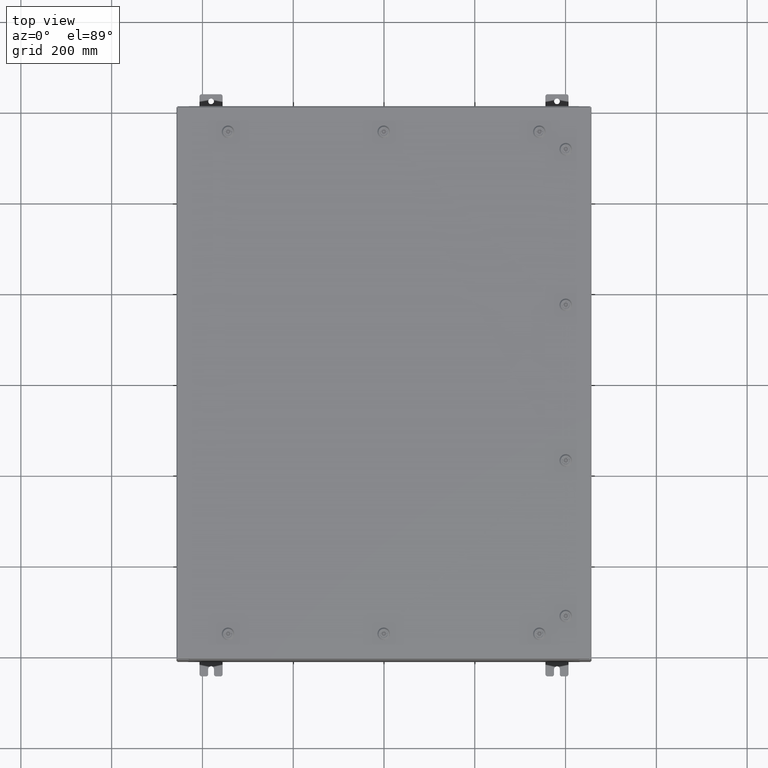
[diagram: clean part render]
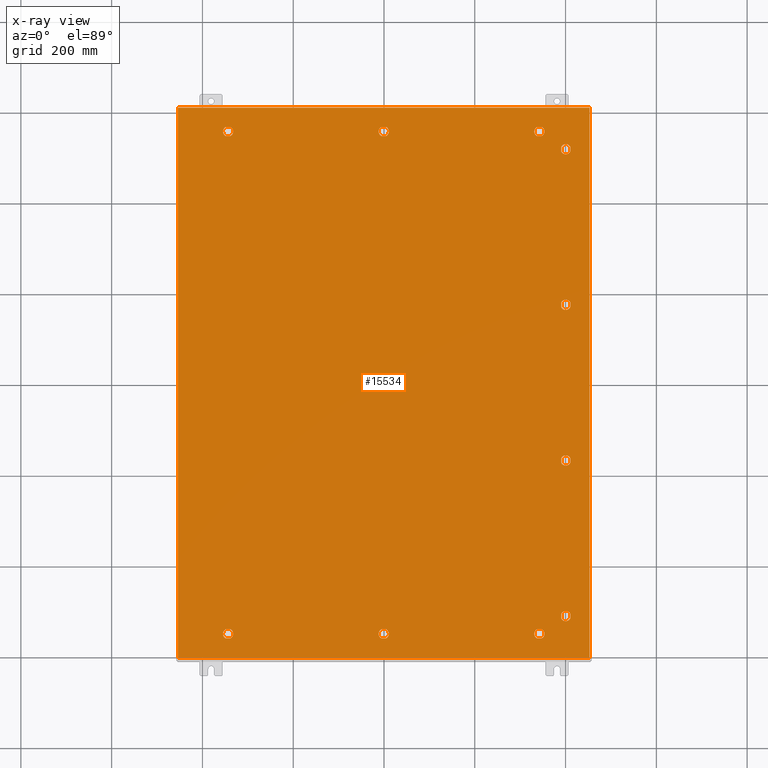
[diagram: x-ray — body ghosted, one internal face saturated and labeled with its STEP entity id]
A machine part, top view, then the same camera in x-ray: the body is ghosted and one INTERNAL B-rep face — a face not visible from any outside direction — is saturated and labeled: STEP entity #15534.
In plain terms, the highlighted planar face has unit normal (0, 0, -1).
Its self-contained STEP definition (entity closure, byte-faithful):
#37 = CARTESIAN_POINT ( 'NONE',  ( 16.18280000000001800, -20.05054762473213300, -0.07470000000000003000 ) ) ;
#75 = VERTEX_POINT ( 'NONE', #17983 ) ;
#163 = CIRCLE ( 'NONE', #15433, 0.4424999999999961700 ) ;
#494 = AXIS2_PLACEMENT_3D ( 'NONE', #17454, #54567, #22772 ) ;
#769 = ORIENTED_EDGE ( 'NONE', *, *, #22040, .T. ) ;
#832 = CARTESIAN_POINT ( 'NONE',  ( -13.49999999999998600, -21.78780000000000800, -0.07470000000000003000 ) ) ;
#854 = CIRCLE ( 'NONE', #10004, 0.4424999999999961700 ) ;
#1095 = DIRECTION ( 'NONE',  ( -5.478697338139280800E-015, 1.000000000000000000, 0.0000000000000000000 ) ) ;
#1401 = FACE_BOUND ( 'NONE', #10807, .T. ) ;
#1618 = CIRCLE ( 'NONE', #11493, 0.4424999999999983400 ) ;
#1878 = CARTESIAN_POINT ( 'NONE',  ( 16.18280000000000400, -6.949452375267900300, -0.07470000000000003000 ) ) ;
#2004 = DIRECTION ( 'NONE',  ( -0.0000000000000000000, -0.0000000000000000000, 1.000000000000000000 ) ) ;
#2247 = CARTESIAN_POINT ( 'NONE',  ( 13.69945237526786700, 22.18280000000000400, -0.07470000000000003000 ) ) ;
#3018 = ORIENTED_EDGE ( 'NONE', *, *, #37759, .T. ) ;
#3319 = ORIENTED_EDGE ( 'NONE', *, *, #36808, .T. ) ;
#3341 = CARTESIAN_POINT ( 'NONE',  ( -0.1994523752678689600, 21.39280000000001200, -0.07470000000000003000 ) ) ;
#3543 = AXIS2_PLACEMENT_3D ( 'NONE', #4644, #41782, #9991 ) ;
#3545 = VERTEX_POINT ( 'NONE', #36854 ) ;
#3580 = VERTEX_POINT ( 'NONE', #42418 ) ;
#3613 = CARTESIAN_POINT ( 'NONE',  ( -13.05749999999998900, 21.78780000000000400, -0.07470000000000003000 ) ) ;
#3982 = CARTESIAN_POINT ( 'NONE',  ( 17.84980000000000200, 23.84980000000000900, -0.07469999999999804600 ) ) ;
#4029 = CARTESIAN_POINT ( 'NONE',  ( 13.30054762473210200, 21.39280000000001200, -0.07470000000000003000 ) ) ;
#4033 = CARTESIAN_POINT ( 'NONE',  ( 0.1994523752679067700, 22.18280000000000000, -0.07470000000000003000 ) ) ;
#4089 = VERTEX_POINT ( 'NONE', #3613 ) ;
#4132 = VECTOR ( 'NONE', #11079, 39.37007874015748100 ) ;
#4202 = VERTEX_POINT ( 'NONE', #62790 ) ;
#4644 = CARTESIAN_POINT ( 'NONE',  ( 13.49999999999998600, -21.78780000000000400, -0.07470000000000003000 ) ) ;
#5069 = CARTESIAN_POINT ( 'NONE',  ( 1.529834876451987200E-014, -21.78780000000000400, -0.07470000000000003000 ) ) ;
#5114 = CIRCLE ( 'NONE', #26688, 0.4424999999999983400 ) ;
#5325 = ORIENTED_EDGE ( 'NONE', *, *, #9247, .T. ) ;
#5942 = CIRCLE ( 'NONE', #21193, 0.4424999999999961700 ) ;
#5946 = CARTESIAN_POINT ( 'NONE',  ( -13.30054762473210400, -21.39280000000001500, -0.07470000000000003000 ) ) ;
#6075 = LINE ( 'NONE', #35560, #55985 ) ;
#6140 = DIRECTION ( 'NONE',  ( -1.000000000000000000, 0.0000000000000000000, 0.0000000000000000000 ) ) ;
#6235 = CARTESIAN_POINT ( 'NONE',  ( 0.1994523752679067700, -22.18280000000000000, -0.07470000000000003000 ) ) ;
#6261 = LINE ( 'NONE', #33136, #32872 ) ;
#6452 = CARTESIAN_POINT ( 'NONE',  ( 13.30054762473209500, -22.18280000000000000, -0.07470000000000003000 ) ) ;
#6458 = ORIENTED_EDGE ( 'NONE', *, *, #11545, .F. ) ;
#6733 = CARTESIAN_POINT ( 'NONE',  ( 0.4425000000000125500, 21.78780000000000400, -0.07470000000000003000 ) ) ;
#6764 = CARTESIAN_POINT ( 'NONE',  ( 0.0000000000000000000, 0.0000000000000000000, -0.07470000000000000300 ) ) ;
#6873 = EDGE_CURVE ( 'NONE', #51716, #36488, #6075, .T. ) ;
#7069 = EDGE_CURVE ( 'NONE', #60221, #4089, #63396, .T. ) ;
#7410 = CARTESIAN_POINT ( 'NONE',  ( 17.84980000000000200, -23.84979999999999800, -0.07470000000000000300 ) ) ;
#8037 = EDGE_CURVE ( 'NONE', #46831, #61952, #47565, .T. ) ;
#8076 = VECTOR ( 'NONE', #46489, 39.37007874015748100 ) ;
#8540 = ORIENTED_EDGE ( 'NONE', *, *, #68717, .T. ) ;
#8555 = AXIS2_PLACEMENT_3D ( 'NONE', #51976, #20202, #57352 ) ;
#8990 = AXIS2_PLACEMENT_3D ( 'NONE', #12853, #50003, #18205 ) ;
#9032 = EDGE_CURVE ( 'NONE', #67609, #3545, #5114, .T. ) ;
#9097 = DIRECTION ( 'NONE',  ( 1.095739467627835000E-014, -1.000000000000000000, 0.0000000000000000000 ) ) ;
#9247 = EDGE_CURVE ( 'NONE', #36488, #67938, #54968, .T. ) ;
#9619 = VERTEX_POINT ( 'NONE', #57562 ) ;
#9762 = VERTEX_POINT ( 'NONE', #63551 ) ;
#9991 = DIRECTION ( 'NONE',  ( -1.000000000000000000, 0.0000000000000000000, 0.0000000000000000000 ) ) ;
#10004 = AXIS2_PLACEMENT_3D ( 'NONE', #61804, #29992, #67150 ) ;
#10065 = ORIENTED_EDGE ( 'NONE', *, *, #37503, .F. ) ;
#10264 = CIRCLE ( 'NONE', #8990, 0.4424999999999972800 ) ;
#10380 = LINE ( 'NONE', #64693, #65172 ) ;
#10419 = DIRECTION ( 'NONE',  ( -1.000000000000000000, 9.877868451667453200E-015, 0.0000000000000000000 ) ) ;
#10807 = EDGE_LOOP ( 'NONE', ( #68796, #54432, #54046, #49093, #21652 ) ) ;
#11079 = DIRECTION ( 'NONE',  ( -1.000000000000000000, 0.0000000000000000000, 0.0000000000000000000 ) ) ;
#11403 = LINE ( 'NONE', #25423, #27174 ) ;
#11493 = AXIS2_PLACEMENT_3D ( 'NONE', #33823, #2004, #39184 ) ;
#11545 = EDGE_CURVE ( 'NONE', #59935, #35590, #24063, .T. ) ;
#11612 = ORIENTED_EDGE ( 'NONE', *, *, #48999, .T. ) ;
#11778 = ORIENTED_EDGE ( 'NONE', *, *, #16570, .T. ) ;
#11961 = AXIS2_PLACEMENT_3D ( 'NONE', #29204, #66347, #34543 ) ;
#12249 = LINE ( 'NONE', #62866, #40520 ) ;
#12257 = VERTEX_POINT ( 'NONE', #43916 ) ;
#12371 = CARTESIAN_POINT ( 'NONE',  ( 15.39280000000001500, -6.949452375267905600, -0.07470000000000000300 ) ) ;
#12399 = ORIENTED_EDGE ( 'NONE', *, *, #57280, .T. ) ;
#12421 = ORIENTED_EDGE ( 'NONE', *, *, #41600, .T. ) ;
#12505 = AXIS2_PLACEMENT_3D ( 'NONE', #16825, #53920, #22144 ) ;
#12562 = CARTESIAN_POINT ( 'NONE',  ( 16.18280000000000700, 6.949452375267900300, -0.07470000000000000300 ) ) ;
#12646 = DIRECTION ( 'NONE',  ( -1.095739467627844000E-014, -1.000000000000000000, 0.0000000000000000000 ) ) ;
#12853 = CARTESIAN_POINT ( 'NONE',  ( 1.529834876451987200E-014, 21.78780000000000400, -0.07470000000000003000 ) ) ;
#12874 = CARTESIAN_POINT ( 'NONE',  ( -17.84979999999999500, 23.84980000000000900, -0.07470000000000129300 ) ) ;
#13127 = CIRCLE ( 'NONE', #62368, 0.4424999999999983400 ) ;
#13267 = LINE ( 'NONE', #49598, #53921 ) ;
#13903 = DIRECTION ( 'NONE',  ( -0.0000000000000000000, -0.0000000000000000000, 1.000000000000000000 ) ) ;
#13924 = FACE_BOUND ( 'NONE', #14090, .T. ) ;
#13950 = VECTOR ( 'NONE', #62910, 39.37007874015748100 ) ;
#14064 = CARTESIAN_POINT ( 'NONE',  ( 15.39280000000001400, 6.550547624732131700, -0.07470000000000003000 ) ) ;
#14090 = EDGE_LOOP ( 'NONE', ( #34925, #46557, #54958, #11612, #57676 ) ) ;
#14119 = VERTEX_POINT ( 'NONE', #57889 ) ;
#14762 = AXIS2_PLACEMENT_3D ( 'NONE', #27377, #64515, #32723 ) ;
#14998 = ORIENTED_EDGE ( 'NONE', *, *, #24389, .T. ) ;
#15092 = CARTESIAN_POINT ( 'NONE',  ( 13.49999999999998600, 21.78780000000000400, -0.07470000000000003000 ) ) ;
#15168 = DIRECTION ( 'NONE',  ( -0.0000000000000000000, -0.0000000000000000000, 1.000000000000000000 ) ) ;
#15183 = EDGE_CURVE ( 'NONE', #67938, #12257, #11403, .T. ) ;
#15187 = ORIENTED_EDGE ( 'NONE', *, *, #42285, .T. ) ;
#15219 = AXIS2_PLACEMENT_3D ( 'NONE', #832, #37974, #6140 ) ;
#15433 = AXIS2_PLACEMENT_3D ( 'NONE', #62601, #30806, #67953 ) ;
#15534 = ADVANCED_FACE ( 'NONE', ( #32990, #57945, #17232, #15594, #1401, #29660, #56300, #42130, #27970, #13924, #68720 ), #38600, .T. ) ;
#15594 = FACE_BOUND ( 'NONE', #20407, .T. ) ;
#15895 = EDGE_CURVE ( 'NONE', #48794, #32324, #18036, .T. ) ;
#15935 = VERTEX_POINT ( 'NONE', #57320 ) ;
#16156 = CARTESIAN_POINT ( 'NONE',  ( -13.05749999999999000, -21.78780000000000800, -0.07470000000000003000 ) ) ;
#16454 = VERTEX_POINT ( 'NONE', #3341 ) ;
#16517 = DIRECTION ( 'NONE',  ( -1.000000000000000000, 0.0000000000000000000, 0.0000000000000000000 ) ) ;
#16570 = EDGE_CURVE ( 'NONE', #66641, #51792, #52864, .T. ) ;
#16825 = CARTESIAN_POINT ( 'NONE',  ( -13.49999999999998600, 21.78780000000000400, -0.07470000000000003000 ) ) ;
#16955 = ORIENTED_EDGE ( 'NONE', *, *, #47272, .T. ) ;
#17232 = FACE_BOUND ( 'NONE', #64681, .T. ) ;
#17370 = EDGE_CURVE ( 'NONE', #57395, #32882, #36203, .T. ) ;
#17454 = CARTESIAN_POINT ( 'NONE',  ( 1.529834876451987200E-014, -21.78780000000000400, -0.07470000000000003000 ) ) ;
#17538 = AXIS2_PLACEMENT_3D ( 'NONE', #22326, #59452, #27641 ) ;
#17782 = CIRCLE ( 'NONE', #3543, 0.4424999999999983400 ) ;
#17817 = DIRECTION ( 'NONE',  ( -5.478697338139235000E-015, 1.000000000000000000, 0.0000000000000000000 ) ) ;
#17983 = CARTESIAN_POINT ( 'NONE',  ( 17.84980000000000200, 23.84980000000000200, -0.07470000000000000300 ) ) ;
#18036 = LINE ( 'NONE', #46637, #60357 ) ;
#18205 = DIRECTION ( 'NONE',  ( -1.000000000000000000, 0.0000000000000000000, 0.0000000000000000000 ) ) ;
#18332 = ORIENTED_EDGE ( 'NONE', *, *, #17370, .T. ) ;
#18454 = DIRECTION ( 'NONE',  ( -0.0000000000000000000, -0.0000000000000000000, 1.000000000000000000 ) ) ;
#18467 = CARTESIAN_POINT ( 'NONE',  ( 15.39280000000002200, 20.44945237526790300, -0.07470000000000003000 ) ) ;
#19174 = LINE ( 'NONE', #6452, #45726 ) ;
#19250 = AXIS2_PLACEMENT_3D ( 'NONE', #21059, #58196, #26352 ) ;
#19262 = EDGE_CURVE ( 'NONE', #4089, #62462, #56029, .T. ) ;
#19359 = VECTOR ( 'NONE', #57682, 39.37007874015748100 ) ;
#19590 = VERTEX_POINT ( 'NONE', #19801 ) ;
#19745 = CIRCLE ( 'NONE', #15219, 0.4424999999999961700 ) ;
#19746 = EDGE_CURVE ( 'NONE', #19590, #34097, #17782, .T. ) ;
#19801 = CARTESIAN_POINT ( 'NONE',  ( 13.69945237526786900, -22.18280000000000400, -0.07470000000000003000 ) ) ;
#20202 = DIRECTION ( 'NONE',  ( -0.0000000000000000000, -0.0000000000000000000, 1.000000000000000000 ) ) ;
#20300 = CARTESIAN_POINT ( 'NONE',  ( 0.1994523752678995500, 21.39280000000001200, -0.07470000000000003000 ) ) ;
#20407 = EDGE_LOOP ( 'NONE', ( #64170, #769, #14998, #64140 ) ) ;
#20408 = DIRECTION ( 'NONE',  ( -1.000000000000000000, 0.0000000000000000000, 0.0000000000000000000 ) ) ;
#20471 = ORIENTED_EDGE ( 'NONE', *, *, #8037, .T. ) ;
#20831 = VERTEX_POINT ( 'NONE', #60471 ) ;
#20858 = LINE ( 'NONE', #24790, #50760 ) ;
#20935 = LINE ( 'NONE', #38596, #33355 ) ;
#21059 = CARTESIAN_POINT ( 'NONE',  ( 15.78780000000000800, -6.750000000000014200, -0.07470000000000003000 ) ) ;
#21193 = AXIS2_PLACEMENT_3D ( 'NONE', #27927, #65070, #33306 ) ;
#21300 = CIRCLE ( 'NONE', #17538, 0.4424999999999972800 ) ;
#21308 = CARTESIAN_POINT ( 'NONE',  ( -13.49999999999998600, -21.78780000000000800, -0.07470000000000003000 ) ) ;
#21352 = EDGE_CURVE ( 'NONE', #15935, #66641, #31568, .T. ) ;
#21621 = CIRCLE ( 'NONE', #494, 0.4424999999999969000 ) ;
#21652 = ORIENTED_EDGE ( 'NONE', *, *, #52927, .T. ) ;
#21734 = CARTESIAN_POINT ( 'NONE',  ( 1.529834876451987200E-014, -21.78780000000000400, -0.07470000000000003000 ) ) ;
#21815 = DIRECTION ( 'NONE',  ( -0.0000000000000000000, -0.0000000000000000000, 1.000000000000000000 ) ) ;
#21819 = EDGE_CURVE ( 'NONE', #66131, #42914, #48164, .T. ) ;
#22040 = EDGE_CURVE ( 'NONE', #3545, #49673, #13267, .T. ) ;
#22144 = DIRECTION ( 'NONE',  ( -1.000000000000000000, 0.0000000000000000000, 0.0000000000000000000 ) ) ;
#22326 = CARTESIAN_POINT ( 'NONE',  ( 1.529834876451987200E-014, 21.78780000000000400, -0.07470000000000003000 ) ) ;
#22353 = EDGE_CURVE ( 'NONE', #12257, #51716, #59723, .T. ) ;
#22580 = CARTESIAN_POINT ( 'NONE',  ( 13.49999999999998600, -21.78780000000000400, -0.07470000000000003000 ) ) ;
#22712 = AXIS2_PLACEMENT_3D ( 'NONE', #56259, #24423, #61564 ) ;
#22772 = DIRECTION ( 'NONE',  ( -1.000000000000000000, 0.0000000000000000000, 0.0000000000000000000 ) ) ;
#22853 = CIRCLE ( 'NONE', #22712, 0.4424999999999961700 ) ;
#22884 = ORIENTED_EDGE ( 'NONE', *, *, #54163, .T. ) ;
#23045 = DIRECTION ( 'NONE',  ( 1.000000000000000000, 0.0000000000000000000, 0.0000000000000000000 ) ) ;
#23639 = ORIENTED_EDGE ( 'NONE', *, *, #60553, .T. ) ;
#23682 = ORIENTED_EDGE ( 'NONE', *, *, #15895, .T. ) ;
#24054 = CARTESIAN_POINT ( 'NONE',  ( 16.18280000000001100, 20.44945237526789600, -0.07470000000000000300 ) ) ;
#24063 = LINE ( 'NONE', #12874, #38162 ) ;
#24232 = VECTOR ( 'NONE', #48697, 39.37007874015748100 ) ;
#24389 = EDGE_CURVE ( 'NONE', #49673, #45812, #13127, .T. ) ;
#24423 = DIRECTION ( 'NONE',  ( -0.0000000000000000000, -0.0000000000000000000, 1.000000000000000000 ) ) ;
#24492 = EDGE_CURVE ( 'NONE', #45812, #67609, #12249, .T. ) ;
#24790 = CARTESIAN_POINT ( 'NONE',  ( 15.39280000000002800, -20.44945237526790300, -0.07470000000000003000 ) ) ;
#25423 = CARTESIAN_POINT ( 'NONE',  ( 16.18280000000000400, -6.949452375267900300, -0.07470000000000003000 ) ) ;
#25563 = AXIS2_PLACEMENT_3D ( 'NONE', #46938, #15168, #52265 ) ;
#25569 = ORIENTED_EDGE ( 'NONE', *, *, #65531, .T. ) ;
#25731 = VERTEX_POINT ( 'NONE', #7410 ) ;
#26314 = CARTESIAN_POINT ( 'NONE',  ( 15.78780000000001800, -20.25000000000001400, -0.07470000000000003000 ) ) ;
#26352 = DIRECTION ( 'NONE',  ( -1.000000000000000000, 0.0000000000000000000, 0.0000000000000000000 ) ) ;
#26617 = DIRECTION ( 'NONE',  ( -1.000000000000000000, 0.0000000000000000000, 0.0000000000000000000 ) ) ;
#26652 = CARTESIAN_POINT ( 'NONE',  ( -0.1994523752678657700, -22.18280000000000400, -0.07470000000000003000 ) ) ;
#26688 = AXIS2_PLACEMENT_3D ( 'NONE', #53595, #21815, #58942 ) ;
#26698 = AXIS2_PLACEMENT_3D ( 'NONE', #50244, #18454, #55601 ) ;
#27037 = DIRECTION ( 'NONE',  ( -1.000000000000000000, 0.0000000000000000000, 0.0000000000000000000 ) ) ;
#27174 = VECTOR ( 'NONE', #62554, 39.37007874015748100 ) ;
#27377 = CARTESIAN_POINT ( 'NONE',  ( 15.78780000000000800, -6.750000000000014200, -0.07470000000000003000 ) ) ;
#27588 = EDGE_LOOP ( 'NONE', ( #53614, #12421, #3319, #20471 ) ) ;
#27641 = DIRECTION ( 'NONE',  ( -1.000000000000000000, 9.877868451667453200E-015, 0.0000000000000000000 ) ) ;
#27879 = DIRECTION ( 'NONE',  ( -1.000000000000000000, -9.877868451667478400E-015, 0.0000000000000000000 ) ) ;
#27927 = CARTESIAN_POINT ( 'NONE',  ( 15.78780000000001500, 20.25000000000001400, -0.07470000000000003000 ) ) ;
#27970 = FACE_BOUND ( 'NONE', #49931, .T. ) ;
#28115 = DIRECTION ( 'NONE',  ( 0.0000000000000000000, 0.0000000000000000000, -1.000000000000000000 ) ) ;
#28839 = CARTESIAN_POINT ( 'NONE',  ( 13.30054762473210200, 21.39280000000001200, -0.07470000000000003000 ) ) ;
#29126 = AXIS2_PLACEMENT_3D ( 'NONE', #6764, #28115, #65260 ) ;
#29204 = CARTESIAN_POINT ( 'NONE',  ( -13.49999999999998600, 21.78780000000000400, -0.07470000000000003000 ) ) ;
#29579 = CARTESIAN_POINT ( 'NONE',  ( -13.69945237526786900, 21.39280000000001200, -0.07470000000000003000 ) ) ;
#29660 = FACE_BOUND ( 'NONE', #32738, .T. ) ;
#29689 = LINE ( 'NONE', #41565, #13950 ) ;
#29760 = LINE ( 'NONE', #44228, #42222 ) ;
#29923 = CARTESIAN_POINT ( 'NONE',  ( 15.78780000000001000, 6.750000000000014200, -0.07470000000000003000 ) ) ;
#29992 = DIRECTION ( 'NONE',  ( -0.0000000000000000000, -0.0000000000000000000, 1.000000000000000000 ) ) ;
#30690 = ORIENTED_EDGE ( 'NONE', *, *, #56643, .T. ) ;
#30767 = VECTOR ( 'NONE', #12646, 39.37007874015748100 ) ;
#30806 = DIRECTION ( 'NONE',  ( -0.0000000000000000000, -0.0000000000000000000, 1.000000000000000000 ) ) ;
#31063 = DIRECTION ( 'NONE',  ( -1.095739467627835000E-014, -1.000000000000000000, 0.0000000000000000000 ) ) ;
#31199 = CARTESIAN_POINT ( 'NONE',  ( 16.18280000000001500, -20.44945237526789600, -0.07470000000000003000 ) ) ;
#31211 = CARTESIAN_POINT ( 'NONE',  ( 16.18280000000001500, -20.44945237526789600, -0.07470000000000003000 ) ) ;
#31364 = CIRCLE ( 'NONE', #48964, 0.4424999999999961700 ) ;
#31568 = CIRCLE ( 'NONE', #26698, 0.4424999999999983400 ) ;
#31663 = DIRECTION ( 'NONE',  ( -1.000000000000000000, 0.0000000000000000000, 0.0000000000000000000 ) ) ;
#32095 = CARTESIAN_POINT ( 'NONE',  ( 15.39280000000002800, -20.44945237526790300, -0.07470000000000000300 ) ) ;
#32324 = VERTEX_POINT ( 'NONE', #56556 ) ;
#32723 = DIRECTION ( 'NONE',  ( -1.000000000000000000, 0.0000000000000000000, 0.0000000000000000000 ) ) ;
#32738 = EDGE_LOOP ( 'NONE', ( #30690, #23682, #44256, #3018, #42654 ) ) ;
#32817 = CARTESIAN_POINT ( 'NONE',  ( -13.69945237526786900, -22.18280000000000700, -0.07470000000000003000 ) ) ;
#32872 = VECTOR ( 'NONE', #38489, 39.37007874015748100 ) ;
#32882 = VERTEX_POINT ( 'NONE', #56414 ) ;
#32990 = FACE_BOUND ( 'NONE', #27588, .T. ) ;
#33136 = CARTESIAN_POINT ( 'NONE',  ( 17.84980000000000200, -23.84980000000000200, -0.07470000000000019700 ) ) ;
#33207 = EDGE_CURVE ( 'NONE', #16454, #60286, #65203, .T. ) ;
#33306 = DIRECTION ( 'NONE',  ( -1.000000000000000000, 0.0000000000000000000, 0.0000000000000000000 ) ) ;
#33355 = VECTOR ( 'NONE', #33711, 39.37007874015748100 ) ;
#33610 = ORIENTED_EDGE ( 'NONE', *, *, #66491, .T. ) ;
#33711 = DIRECTION ( 'NONE',  ( -1.000000000000000000, -1.095739467627832000E-014, 0.0000000000000000000 ) ) ;
#33823 = CARTESIAN_POINT ( 'NONE',  ( 13.49999999999998600, -21.78780000000000400, -0.07470000000000003000 ) ) ;
#34006 = CIRCLE ( 'NONE', #68458, 0.4424999999999972800 ) ;
#34097 = VERTEX_POINT ( 'NONE', #47351 ) ;
#34485 = VERTEX_POINT ( 'NONE', #2247 ) ;
#34543 = DIRECTION ( 'NONE',  ( -1.000000000000000000, 0.0000000000000000000, 0.0000000000000000000 ) ) ;
#34615 = CIRCLE ( 'NONE', #12505, 0.4424999999999961700 ) ;
#34717 = DIRECTION ( 'NONE',  ( -1.000000000000000000, 0.0000000000000000000, 0.0000000000000000000 ) ) ;
#34925 = ORIENTED_EDGE ( 'NONE', *, *, #52240, .T. ) ;
#35028 = LINE ( 'NONE', #44158, #63276 ) ;
#35249 = DIRECTION ( 'NONE',  ( -1.000000000000000000, 0.0000000000000000000, 0.0000000000000000000 ) ) ;
#35359 = VERTEX_POINT ( 'NONE', #49187 ) ;
#35560 = CARTESIAN_POINT ( 'NONE',  ( 15.39280000000001500, -6.949452375267904700, -0.07470000000000003000 ) ) ;
#35590 = VERTEX_POINT ( 'NONE', #49970 ) ;
#36128 = ORIENTED_EDGE ( 'NONE', *, *, #53827, .T. ) ;
#36203 = CIRCLE ( 'NONE', #36763, 0.4424999999999972800 ) ;
#36488 = VERTEX_POINT ( 'NONE', #12371 ) ;
#36763 = AXIS2_PLACEMENT_3D ( 'NONE', #5069, #42226, #10419 ) ;
#36808 = EDGE_CURVE ( 'NONE', #46879, #46831, #59626, .T. ) ;
#36854 = CARTESIAN_POINT ( 'NONE',  ( 16.18280000000000700, 6.550547624732131700, -0.07470000000000003000 ) ) ;
#37056 = EDGE_LOOP ( 'NONE', ( #60347, #40341, #6458, #10065 ) ) ;
#37503 = EDGE_CURVE ( 'NONE', #75, #59935, #37991, .T. ) ;
#37671 = CARTESIAN_POINT ( 'NONE',  ( 15.39280000000001200, -6.550547624732131700, -0.07470000000000003000 ) ) ;
#37759 = EDGE_CURVE ( 'NONE', #48772, #66131, #42135, .T. ) ;
#37822 = AXIS2_PLACEMENT_3D ( 'NONE', #15092, #52185, #20408 ) ;
#37842 = CARTESIAN_POINT ( 'NONE',  ( 15.39280000000002200, -20.05054762473213300, -0.07470000000000003000 ) ) ;
#37859 = VERTEX_POINT ( 'NONE', #41975 ) ;
#37974 = DIRECTION ( 'NONE',  ( -0.0000000000000000000, -0.0000000000000000000, 1.000000000000000000 ) ) ;
#37991 = LINE ( 'NONE', #3982, #8076 ) ;
#38151 = AXIS2_PLACEMENT_3D ( 'NONE', #21308, #58439, #26617 ) ;
#38162 = VECTOR ( 'NONE', #50254, 39.37007874015748100 ) ;
#38298 = LINE ( 'NONE', #53622, #64832 ) ;
#38332 = CARTESIAN_POINT ( 'NONE',  ( -13.69945237526786700, 22.18280000000000400, -0.07470000000000003000 ) ) ;
#38489 = DIRECTION ( 'NONE',  ( 0.0000000000000000000, 1.000000000000000000, 0.0000000000000000000 ) ) ;
#38596 = CARTESIAN_POINT ( 'NONE',  ( 13.30054762473209400, 22.18280000000000000, -0.07470000000000003000 ) ) ;
#38600 = PLANE ( 'NONE',  #29126 ) ;
#39116 = EDGE_CURVE ( 'NONE', #60286, #43275, #21300, .T. ) ;
#39184 = DIRECTION ( 'NONE',  ( -1.000000000000000000, 0.0000000000000000000, 0.0000000000000000000 ) ) ;
#39890 = ORIENTED_EDGE ( 'NONE', *, *, #7069, .T. ) ;
#40341 = ORIENTED_EDGE ( 'NONE', *, *, #59061, .F. ) ;
#40500 = CIRCLE ( 'NONE', #37822, 0.4424999999999961700 ) ;
#40520 = VECTOR ( 'NONE', #31063, 39.37007874015748100 ) ;
#40576 = VERTEX_POINT ( 'NONE', #55427 ) ;
#40843 = ORIENTED_EDGE ( 'NONE', *, *, #54572, .T. ) ;
#40955 = CARTESIAN_POINT ( 'NONE',  ( -13.30054762473210200, 21.39280000000001200, -0.07470000000000000300 ) ) ;
#41178 = DIRECTION ( 'NONE',  ( 1.000000000000000000, 0.0000000000000000000, 0.0000000000000000000 ) ) ;
#41565 = CARTESIAN_POINT ( 'NONE',  ( -17.84979999999999800, -23.84980000000000200, -0.07469999999999804600 ) ) ;
#41600 = EDGE_CURVE ( 'NONE', #48517, #46879, #20858, .T. ) ;
#41782 = DIRECTION ( 'NONE',  ( -0.0000000000000000000, -0.0000000000000000000, 1.000000000000000000 ) ) ;
#41975 = CARTESIAN_POINT ( 'NONE',  ( -0.1994523752678657700, 22.18280000000000400, -0.07470000000000003000 ) ) ;
#42130 = FACE_BOUND ( 'NONE', #66894, .T. ) ;
#42135 = CIRCLE ( 'NONE', #8555, 0.4424999999999961700 ) ;
#42222 = VECTOR ( 'NONE', #34717, 39.37007874015748100 ) ;
#42226 = DIRECTION ( 'NONE',  ( -0.0000000000000000000, -0.0000000000000000000, 1.000000000000000000 ) ) ;
#42285 = EDGE_CURVE ( 'NONE', #45154, #35359, #46583, .T. ) ;
#42418 = CARTESIAN_POINT ( 'NONE',  ( 13.30054762473209500, -22.18280000000000000, -0.07470000000000003000 ) ) ;
#42527 = CARTESIAN_POINT ( 'NONE',  ( 0.1994523752678995500, 21.39280000000001200, -0.07470000000000000300 ) ) ;
#42654 = ORIENTED_EDGE ( 'NONE', *, *, #21819, .T. ) ;
#42838 = ORIENTED_EDGE ( 'NONE', *, *, #19262, .T. ) ;
#42914 = VERTEX_POINT ( 'NONE', #52968 ) ;
#43275 = VERTEX_POINT ( 'NONE', #6733 ) ;
#43344 = CARTESIAN_POINT ( 'NONE',  ( -13.30054762473209400, 22.18280000000000000, -0.07470000000000003000 ) ) ;
#43626 = DIRECTION ( 'NONE',  ( 1.000000000000000000, -1.095739467627832000E-014, 0.0000000000000000000 ) ) ;
#43916 = CARTESIAN_POINT ( 'NONE',  ( 16.18280000000000700, -6.550547624732131700, -0.07470000000000003000 ) ) ;
#44158 = CARTESIAN_POINT ( 'NONE',  ( -13.30054762473210200, 21.39280000000001200, -0.07470000000000003000 ) ) ;
#44228 = CARTESIAN_POINT ( 'NONE',  ( 0.1994523752678995500, -21.39280000000001200, -0.07470000000000003000 ) ) ;
#44256 = ORIENTED_EDGE ( 'NONE', *, *, #65775, .T. ) ;
#45154 = VERTEX_POINT ( 'NONE', #63734 ) ;
#45695 = CARTESIAN_POINT ( 'NONE',  ( -13.49999999999998600, 21.78780000000000400, -0.07470000000000003000 ) ) ;
#45726 = VECTOR ( 'NONE', #43626, 39.37007874015748100 ) ;
#45812 = VERTEX_POINT ( 'NONE', #52247 ) ;
#46306 = DIRECTION ( 'NONE',  ( -1.000000000000000000, 1.095739467627836300E-014, 0.0000000000000000000 ) ) ;
#46489 = DIRECTION ( 'NONE',  ( -1.000000000000000000, -0.0000000000000000000, -0.0000000000000000000 ) ) ;
#46557 = ORIENTED_EDGE ( 'NONE', *, *, #33207, .T. ) ;
#46583 = LINE ( 'NONE', #18467, #30767 ) ;
#46637 = CARTESIAN_POINT ( 'NONE',  ( -13.30054762473209500, -22.18280000000000400, -0.07470000000000003000 ) ) ;
#46831 = VERTEX_POINT ( 'NONE', #31211 ) ;
#46879 = VERTEX_POINT ( 'NONE', #32095 ) ;
#46938 = CARTESIAN_POINT ( 'NONE',  ( 1.529834876451987200E-014, 21.78780000000000400, -0.07470000000000003000 ) ) ;
#47058 = EDGE_CURVE ( 'NONE', #9762, #3580, #31364, .T. ) ;
#47272 = EDGE_CURVE ( 'NONE', #35359, #9619, #22853, .T. ) ;
#47351 = CARTESIAN_POINT ( 'NONE',  ( 13.94249999999998500, -21.78780000000000400, -0.07470000000000003000 ) ) ;
#47409 = VERTEX_POINT ( 'NONE', #24054 ) ;
#47565 = LINE ( 'NONE', #31199, #19359 ) ;
#47566 = CARTESIAN_POINT ( 'NONE',  ( -13.30054762473209400, 22.18280000000000000, -0.07470000000000003000 ) ) ;
#47948 = ORIENTED_EDGE ( 'NONE', *, *, #15183, .T. ) ;
#48127 = AXIS2_PLACEMENT_3D ( 'NONE', #26314, #63468, #31663 ) ;
#48164 = LINE ( 'NONE', #5946, #4132 ) ;
#48517 = VERTEX_POINT ( 'NONE', #37842 ) ;
#48697 = DIRECTION ( 'NONE',  ( -1.000000000000000000, 1.095739467627832000E-014, 0.0000000000000000000 ) ) ;
#48765 = DIRECTION ( 'NONE',  ( 1.000000000000000000, 1.095739467627836300E-014, 0.0000000000000000000 ) ) ;
#48772 = VERTEX_POINT ( 'NONE', #16156 ) ;
#48783 = ORIENTED_EDGE ( 'NONE', *, *, #54589, .T. ) ;
#48794 = VERTEX_POINT ( 'NONE', #32817 ) ;
#48888 = ORIENTED_EDGE ( 'NONE', *, *, #62035, .T. ) ;
#48964 = AXIS2_PLACEMENT_3D ( 'NONE', #22580, #59696, #27879 ) ;
#48966 = VECTOR ( 'NONE', #48765, 39.37007874015748100 ) ;
#48999 = EDGE_CURVE ( 'NONE', #43275, #4202, #10264, .T. ) ;
#49093 = ORIENTED_EDGE ( 'NONE', *, *, #47058, .T. ) ;
#49187 = CARTESIAN_POINT ( 'NONE',  ( 15.39280000000001900, 20.05054762473213300, -0.07470000000000003000 ) ) ;
#49229 = CARTESIAN_POINT ( 'NONE',  ( 0.4425000000000125500, -21.78780000000000400, -0.07470000000000003000 ) ) ;
#49598 = CARTESIAN_POINT ( 'NONE',  ( 16.18280000000000700, 6.949452375267900300, -0.07470000000000003000 ) ) ;
#49673 = VERTEX_POINT ( 'NONE', #12562 ) ;
#49931 = EDGE_LOOP ( 'NONE', ( #33610, #40843, #39890, #42838, #23639 ) ) ;
#49970 = CARTESIAN_POINT ( 'NONE',  ( -17.84979999999999800, -23.84979999999999800, -0.07470000000000000300 ) ) ;
#50003 = DIRECTION ( 'NONE',  ( -0.0000000000000000000, -0.0000000000000000000, 1.000000000000000000 ) ) ;
#50244 = CARTESIAN_POINT ( 'NONE',  ( 13.49999999999998600, 21.78780000000000400, -0.07470000000000003000 ) ) ;
#50254 = DIRECTION ( 'NONE',  ( 0.0000000000000000000, -1.000000000000000000, 0.0000000000000000000 ) ) ;
#50760 = VECTOR ( 'NONE', #61940, 39.37007874015748100 ) ;
#51021 = DIRECTION ( 'NONE',  ( -1.000000000000000000, 0.0000000000000000000, 0.0000000000000000000 ) ) ;
#51512 = AXIS2_PLACEMENT_3D ( 'NONE', #45695, #13903, #51021 ) ;
#51716 = VERTEX_POINT ( 'NONE', #37671 ) ;
#51792 = VERTEX_POINT ( 'NONE', #64809 ) ;
#51946 = DIRECTION ( 'NONE',  ( 1.000000000000000000, 1.095739467627832000E-014, 0.0000000000000000000 ) ) ;
#51976 = CARTESIAN_POINT ( 'NONE',  ( -13.49999999999998600, -21.78780000000000800, -0.07470000000000003000 ) ) ;
#52185 = DIRECTION ( 'NONE',  ( -0.0000000000000000000, -0.0000000000000000000, 1.000000000000000000 ) ) ;
#52240 = EDGE_CURVE ( 'NONE', #37859, #16454, #53217, .T. ) ;
#52242 = EDGE_LOOP ( 'NONE', ( #48888, #12399, #57420, #18332, #61472 ) ) ;
#52247 = CARTESIAN_POINT ( 'NONE',  ( 15.39280000000001900, 6.949452375267904700, -0.07470000000000003000 ) ) ;
#52265 = DIRECTION ( 'NONE',  ( -1.000000000000000000, 0.0000000000000000000, 0.0000000000000000000 ) ) ;
#52550 = EDGE_CURVE ( 'NONE', #61952, #48517, #854, .T. ) ;
#52820 = LINE ( 'NONE', #4033, #66943 ) ;
#52864 = LINE ( 'NONE', #4029, #65284 ) ;
#52927 = EDGE_CURVE ( 'NONE', #3580, #19590, #19174, .T. ) ;
#52968 = CARTESIAN_POINT ( 'NONE',  ( -13.69945237526787100, -21.39280000000001500, -0.07470000000000003000 ) ) ;
#53217 = CIRCLE ( 'NONE', #25563, 0.4424999999999969000 ) ;
#53595 = CARTESIAN_POINT ( 'NONE',  ( 15.78780000000001000, 6.750000000000014200, -0.07470000000000003000 ) ) ;
#53614 = ORIENTED_EDGE ( 'NONE', *, *, #52550, .T. ) ;
#53622 = CARTESIAN_POINT ( 'NONE',  ( 13.30054762473210400, -21.39280000000001200, -0.07470000000000003000 ) ) ;
#53827 = EDGE_CURVE ( 'NONE', #40576, #34485, #163, .T. ) ;
#53920 = DIRECTION ( 'NONE',  ( -0.0000000000000000000, -0.0000000000000000000, 1.000000000000000000 ) ) ;
#53921 = VECTOR ( 'NONE', #17817, 39.37007874015748100 ) ;
#54046 = ORIENTED_EDGE ( 'NONE', *, *, #55402, .T. ) ;
#54163 = EDGE_CURVE ( 'NONE', #47409, #45154, #5942, .T. ) ;
#54431 = VECTOR ( 'NONE', #57451, 39.37007874015748100 ) ;
#54432 = ORIENTED_EDGE ( 'NONE', *, *, #62811, .T. ) ;
#54567 = DIRECTION ( 'NONE',  ( -0.0000000000000000000, -0.0000000000000000000, 1.000000000000000000 ) ) ;
#54572 = EDGE_CURVE ( 'NONE', #59349, #60221, #35028, .T. ) ;
#54589 = EDGE_CURVE ( 'NONE', #34485, #15935, #20935, .T. ) ;
#54816 = CIRCLE ( 'NONE', #38151, 0.4424999999999983400 ) ;
#54958 = ORIENTED_EDGE ( 'NONE', *, *, #39116, .T. ) ;
#54968 = CIRCLE ( 'NONE', #14762, 0.4424999999999983400 ) ;
#55402 = EDGE_CURVE ( 'NONE', #14119, #9762, #38298, .T. ) ;
#55427 = CARTESIAN_POINT ( 'NONE',  ( 13.94249999999998300, 21.78780000000000400, -0.07470000000000003000 ) ) ;
#55468 = VERTEX_POINT ( 'NONE', #38332 ) ;
#55601 = DIRECTION ( 'NONE',  ( -1.000000000000000000, 0.0000000000000000000, 0.0000000000000000000 ) ) ;
#55985 = VECTOR ( 'NONE', #9097, 39.37007874015748100 ) ;
#56029 = CIRCLE ( 'NONE', #51512, 0.4424999999999983400 ) ;
#56259 = CARTESIAN_POINT ( 'NONE',  ( 15.78780000000001500, 20.25000000000001400, -0.07470000000000003000 ) ) ;
#56300 = FACE_BOUND ( 'NONE', #52242, .T. ) ;
#56414 = CARTESIAN_POINT ( 'NONE',  ( 0.1994523752679002700, -21.39280000000001200, -0.07470000000000003000 ) ) ;
#56556 = CARTESIAN_POINT ( 'NONE',  ( -13.30054762473209500, -22.18280000000000400, -0.07470000000000000300 ) ) ;
#56643 = EDGE_CURVE ( 'NONE', #42914, #48794, #54816, .T. ) ;
#57014 = ORIENTED_EDGE ( 'NONE', *, *, #21352, .T. ) ;
#57280 = EDGE_CURVE ( 'NONE', #68584, #65918, #64702, .T. ) ;
#57320 = CARTESIAN_POINT ( 'NONE',  ( 13.30054762473209400, 22.18280000000000000, -0.07470000000000000300 ) ) ;
#57352 = DIRECTION ( 'NONE',  ( -1.000000000000000000, 0.0000000000000000000, 0.0000000000000000000 ) ) ;
#57395 = VERTEX_POINT ( 'NONE', #49229 ) ;
#57420 = ORIENTED_EDGE ( 'NONE', *, *, #63132, .T. ) ;
#57451 = DIRECTION ( 'NONE',  ( 1.000000000000000000, 0.0000000000000000000, 0.0000000000000000000 ) ) ;
#57562 = CARTESIAN_POINT ( 'NONE',  ( 16.18280000000001500, 20.05054762473213300, -0.07470000000000003000 ) ) ;
#57676 = ORIENTED_EDGE ( 'NONE', *, *, #67714, .T. ) ;
#57682 = DIRECTION ( 'NONE',  ( 5.478697338139280800E-015, 1.000000000000000000, 0.0000000000000000000 ) ) ;
#57889 = CARTESIAN_POINT ( 'NONE',  ( 13.69945237526787100, -21.39280000000001200, -0.07470000000000003000 ) ) ;
#57945 = FACE_BOUND ( 'NONE', #58444, .T. ) ;
#58196 = DIRECTION ( 'NONE',  ( -0.0000000000000000000, -0.0000000000000000000, 1.000000000000000000 ) ) ;
#58352 = EDGE_CURVE ( 'NONE', #32882, #20831, #29760, .T. ) ;
#58439 = DIRECTION ( 'NONE',  ( -0.0000000000000000000, -0.0000000000000000000, 1.000000000000000000 ) ) ;
#58444 = EDGE_LOOP ( 'NONE', ( #58790, #66362, #5325, #47948 ) ) ;
#58790 = ORIENTED_EDGE ( 'NONE', *, *, #22353, .T. ) ;
#58855 = DIRECTION ( 'NONE',  ( -0.0000000000000000000, -0.0000000000000000000, 1.000000000000000000 ) ) ;
#58942 = DIRECTION ( 'NONE',  ( -1.000000000000000000, 2.469467112916857400E-015, 0.0000000000000000000 ) ) ;
#59061 = EDGE_CURVE ( 'NONE', #35590, #25731, #29689, .T. ) ;
#59349 = VERTEX_POINT ( 'NONE', #29579 ) ;
#59452 = DIRECTION ( 'NONE',  ( -0.0000000000000000000, -0.0000000000000000000, 1.000000000000000000 ) ) ;
#59626 = CIRCLE ( 'NONE', #48127, 0.4424999999999961700 ) ;
#59696 = DIRECTION ( 'NONE',  ( -0.0000000000000000000, -0.0000000000000000000, 1.000000000000000000 ) ) ;
#59723 = CIRCLE ( 'NONE', #19250, 0.4424999999999983400 ) ;
#59935 = VERTEX_POINT ( 'NONE', #65087 ) ;
#60221 = VERTEX_POINT ( 'NONE', #40955 ) ;
#60286 = VERTEX_POINT ( 'NONE', #42527 ) ;
#60347 = ORIENTED_EDGE ( 'NONE', *, *, #67458, .F. ) ;
#60357 = VECTOR ( 'NONE', #51946, 39.37007874015748100 ) ;
#60471 = CARTESIAN_POINT ( 'NONE',  ( -0.1994523752678689600, -21.39280000000001200, -0.07470000000000003000 ) ) ;
#60553 = EDGE_CURVE ( 'NONE', #62462, #55468, #66587, .T. ) ;
#61160 = CARTESIAN_POINT ( 'NONE',  ( -13.30054762473210400, -21.39280000000001500, -0.07470000000000003000 ) ) ;
#61472 = ORIENTED_EDGE ( 'NONE', *, *, #58352, .T. ) ;
#61564 = DIRECTION ( 'NONE',  ( -1.000000000000000000, 0.0000000000000000000, 0.0000000000000000000 ) ) ;
#61804 = CARTESIAN_POINT ( 'NONE',  ( 15.78780000000001800, -20.25000000000001400, -0.07470000000000003000 ) ) ;
#61940 = DIRECTION ( 'NONE',  ( 1.095739467627844000E-014, -1.000000000000000000, 0.0000000000000000000 ) ) ;
#61952 = VERTEX_POINT ( 'NONE', #37 ) ;
#62035 = EDGE_CURVE ( 'NONE', #20831, #68584, #21621, .T. ) ;
#62368 = AXIS2_PLACEMENT_3D ( 'NONE', #29923, #67074, #35249 ) ;
#62462 = VERTEX_POINT ( 'NONE', #47566 ) ;
#62554 = DIRECTION ( 'NONE',  ( 5.478697338139235000E-015, 1.000000000000000000, 0.0000000000000000000 ) ) ;
#62601 = CARTESIAN_POINT ( 'NONE',  ( 13.49999999999998600, 21.78780000000000400, -0.07470000000000003000 ) ) ;
#62790 = CARTESIAN_POINT ( 'NONE',  ( 0.1994523752679049900, 22.18280000000000000, -0.07470000000000003000 ) ) ;
#62811 = EDGE_CURVE ( 'NONE', #34097, #14119, #1618, .T. ) ;
#62866 = CARTESIAN_POINT ( 'NONE',  ( 15.39280000000001900, 6.949452375267904700, -0.07470000000000003000 ) ) ;
#62910 = DIRECTION ( 'NONE',  ( 1.000000000000000000, -0.0000000000000000000, -0.0000000000000000000 ) ) ;
#63132 = EDGE_CURVE ( 'NONE', #65918, #57395, #34006, .T. ) ;
#63276 = VECTOR ( 'NONE', #23045, 39.37007874015748100 ) ;
#63396 = CIRCLE ( 'NONE', #11961, 0.4424999999999983400 ) ;
#63468 = DIRECTION ( 'NONE',  ( -0.0000000000000000000, -0.0000000000000000000, 1.000000000000000000 ) ) ;
#63551 = CARTESIAN_POINT ( 'NONE',  ( 13.30054762473210400, -21.39280000000001200, -0.07470000000000000300 ) ) ;
#63734 = CARTESIAN_POINT ( 'NONE',  ( 15.39280000000002200, 20.44945237526790300, -0.07470000000000003000 ) ) ;
#64140 = ORIENTED_EDGE ( 'NONE', *, *, #24492, .T. ) ;
#64170 = ORIENTED_EDGE ( 'NONE', *, *, #9032, .T. ) ;
#64515 = DIRECTION ( 'NONE',  ( -0.0000000000000000000, -0.0000000000000000000, 1.000000000000000000 ) ) ;
#64681 = EDGE_LOOP ( 'NONE', ( #16955, #8540, #22884, #15187 ) ) ;
#64693 = CARTESIAN_POINT ( 'NONE',  ( 16.18280000000001100, 20.44945237526789600, -0.07470000000000003000 ) ) ;
#64702 = LINE ( 'NONE', #6235, #48966 ) ;
#64809 = CARTESIAN_POINT ( 'NONE',  ( 13.69945237526786900, 21.39280000000001200, -0.07470000000000003000 ) ) ;
#64832 = VECTOR ( 'NONE', #16517, 39.37007874015748100 ) ;
#64884 = CARTESIAN_POINT ( 'NONE',  ( 0.1994523752679054600, -22.18280000000000400, -0.07470000000000000300 ) ) ;
#65070 = DIRECTION ( 'NONE',  ( -0.0000000000000000000, -0.0000000000000000000, 1.000000000000000000 ) ) ;
#65087 = CARTESIAN_POINT ( 'NONE',  ( -17.84979999999999500, 23.84980000000000200, -0.07470000000000000300 ) ) ;
#65172 = VECTOR ( 'NONE', #1095, 39.37007874015748100 ) ;
#65203 = LINE ( 'NONE', #20300, #54431 ) ;
#65260 = DIRECTION ( 'NONE',  ( -1.000000000000000000, 0.0000000000000000000, -0.0000000000000000000 ) ) ;
#65284 = VECTOR ( 'NONE', #41178, 39.37007874015748100 ) ;
#65531 = EDGE_CURVE ( 'NONE', #51792, #40576, #40500, .T. ) ;
#65775 = EDGE_CURVE ( 'NONE', #32324, #48772, #19745, .T. ) ;
#65918 = VERTEX_POINT ( 'NONE', #64884 ) ;
#66131 = VERTEX_POINT ( 'NONE', #61160 ) ;
#66347 = DIRECTION ( 'NONE',  ( -0.0000000000000000000, -0.0000000000000000000, 1.000000000000000000 ) ) ;
#66362 = ORIENTED_EDGE ( 'NONE', *, *, #6873, .T. ) ;
#66491 = EDGE_CURVE ( 'NONE', #55468, #59349, #34615, .T. ) ;
#66587 = LINE ( 'NONE', #43344, #24232 ) ;
#66641 = VERTEX_POINT ( 'NONE', #28839 ) ;
#66894 = EDGE_LOOP ( 'NONE', ( #25569, #36128, #48783, #57014, #11778 ) ) ;
#66943 = VECTOR ( 'NONE', #46306, 39.37007874015748100 ) ;
#67074 = DIRECTION ( 'NONE',  ( -0.0000000000000000000, -0.0000000000000000000, 1.000000000000000000 ) ) ;
#67150 = DIRECTION ( 'NONE',  ( -1.000000000000000000, 0.0000000000000000000, 0.0000000000000000000 ) ) ;
#67458 = EDGE_CURVE ( 'NONE', #25731, #75, #6261, .T. ) ;
#67609 = VERTEX_POINT ( 'NONE', #14064 ) ;
#67714 = EDGE_CURVE ( 'NONE', #4202, #37859, #52820, .T. ) ;
#67938 = VERTEX_POINT ( 'NONE', #1878 ) ;
#67953 = DIRECTION ( 'NONE',  ( -1.000000000000000000, 0.0000000000000000000, 0.0000000000000000000 ) ) ;
#68458 = AXIS2_PLACEMENT_3D ( 'NONE', #21734, #58855, #27037 ) ;
#68584 = VERTEX_POINT ( 'NONE', #26652 ) ;
#68717 = EDGE_CURVE ( 'NONE', #9619, #47409, #10380, .T. ) ;
#68720 = FACE_OUTER_BOUND ( 'NONE', #37056, .T. ) ;
#68796 = ORIENTED_EDGE ( 'NONE', *, *, #19746, .T. ) ;